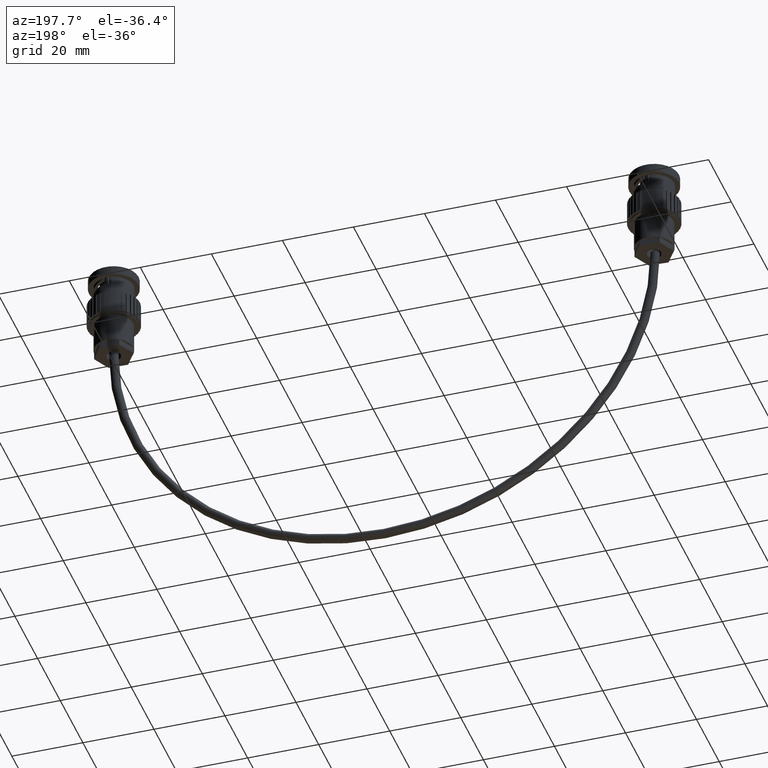
[diagram: clean part render]
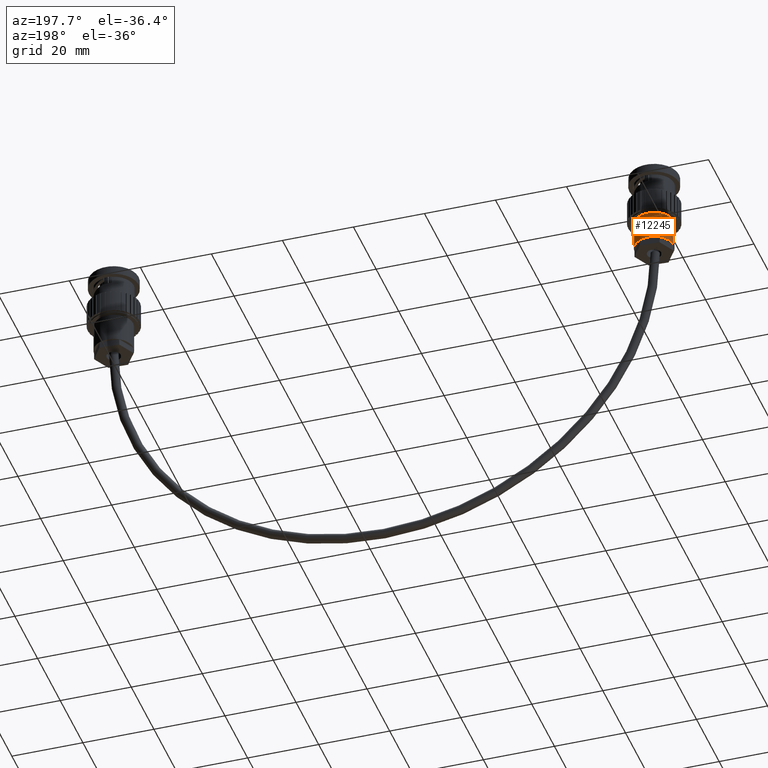
[diagram: same view with one face highlighted and labeled with its STEP entity id]
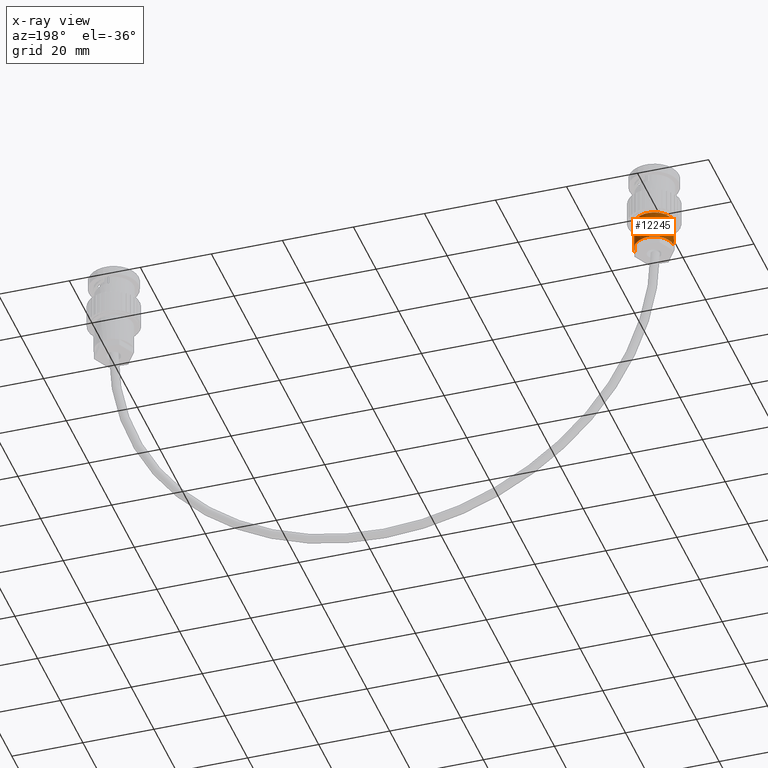
[diagram: x-ray of the same camera — body ghosted, the highlighted face saturated]
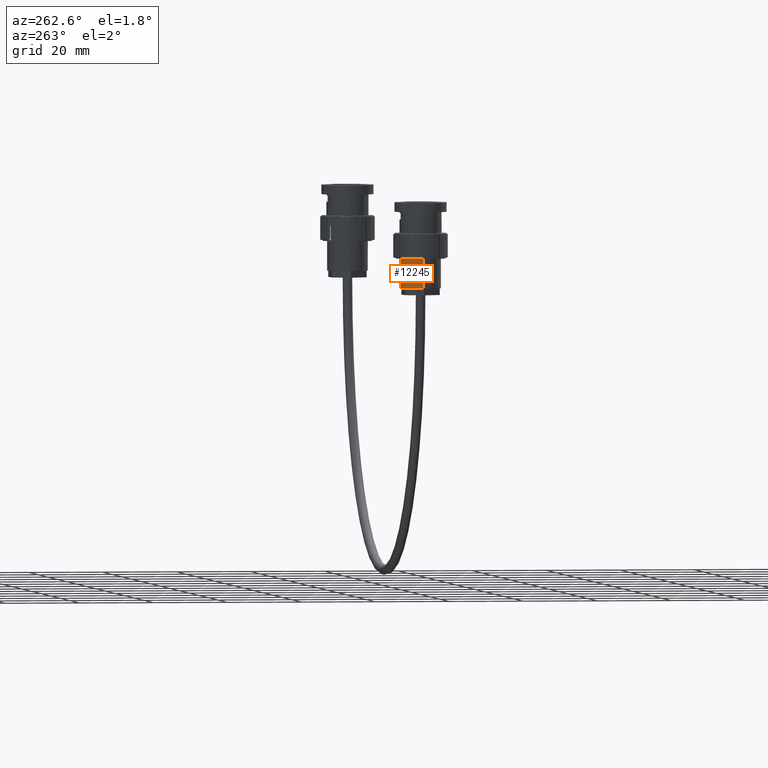
[diagram: same view with one face highlighted and labeled with its STEP entity id]
A machine part, auxiliary view. The second image highlights one B-rep face of the part: STEP entity #12245.
The next image is the same camera in x-ray: the body ghosted, the highlighted face saturated — about 0% of this face is hidden behind the body in this view.
A second angle (auxiliary view) of the same face is appended — the face is thin or edge-on in the first view.
In plain terms, the highlighted cylindrical surface (edge-blend (fillet) strip) has radius 5.461 mm, axis along (-0, -0, 1).
Its self-contained STEP definition (entity closure, byte-faithful):
#2246 = AXIS2_PLACEMENT_3D ( 'NONE', #11805, #11803, #11798 ) ;
#3229 = EDGE_CURVE ( 'NONE', #10389, #10411, #15556, .T. ) ;
#3230 = EDGE_CURVE ( 'NONE', #10411, #10419, #15557, .T. ) ;
#3231 = EDGE_CURVE ( 'NONE', #10410, #10419, #15560, .T. ) ;
#3232 = EDGE_CURVE ( 'NONE', #17506, #10410, #15559, .T. ) ;
#3233 = EDGE_CURVE ( 'NONE', #17506, #10371, #15562, .T. ) ;
#3234 = EDGE_CURVE ( 'NONE', #10371, #10366, #15565, .T. ) ;
#3235 = EDGE_CURVE ( 'NONE', #10366, #10389, #15566, .T. ) ;
#5727 = CARTESIAN_POINT ( 'NONE',  ( 0.2150000000000000000, 0.0000000000000000000, -0.9079046006083559800 ) ) ;
#6559 = CARTESIAN_POINT ( 'NONE',  ( 0.09748554388854337200, 0.1916287262723281300, -0.9079046006083559800 ) ) ;
#6564 = CARTESIAN_POINT ( 'NONE',  ( 0.2146981169909623600, 0.01138940562694254100, -0.9079046006083559800 ) ) ;
#6582 = CARTESIAN_POINT ( 'NONE',  ( -0.1172125731024187500, 0.1802393206453856400, -0.9079046006083559800 ) ) ;
#6603 = CARTESIAN_POINT ( 'NONE',  ( 0.2150000000000000000, 0.0000000000000000000, -0.5929046006083559300 ) ) ;
#6604 = CARTESIAN_POINT ( 'NONE',  ( -0.2150000000000000000, 2.632990618166809100E-017, -0.9079046006083559800 ) ) ;
#6612 = CARTESIAN_POINT ( 'NONE',  ( -0.2150000000000000000, 2.632990618166809100E-017, -0.5929046006083559300 ) ) ;
#8156 = EDGE_LOOP ( 'NONE', ( #10560, #10561, #10562, #10563, #10564, #10565, #10566 ) ) ;
#8876 = FACE_OUTER_BOUND ( 'NONE', #8156, .T. ) ;
#8880 = CYLINDRICAL_SURFACE ( 'NONE', #2246, 0.2150000000000000000 ) ;
#10366 = VERTEX_POINT ( 'NONE', #6559 ) ;
#10371 = VERTEX_POINT ( 'NONE', #6564 ) ;
#10389 = VERTEX_POINT ( 'NONE', #6582 ) ;
#10410 = VERTEX_POINT ( 'NONE', #6603 ) ;
#10411 = VERTEX_POINT ( 'NONE', #6604 ) ;
#10419 = VERTEX_POINT ( 'NONE', #6612 ) ;
#10560 = ORIENTED_EDGE ( 'NONE', *, *, #3229, .T. ) ;
#10561 = ORIENTED_EDGE ( 'NONE', *, *, #3230, .T. ) ;
#10562 = ORIENTED_EDGE ( 'NONE', *, *, #3231, .F. ) ;
#10563 = ORIENTED_EDGE ( 'NONE', *, *, #3232, .F. ) ;
#10564 = ORIENTED_EDGE ( 'NONE', *, *, #3233, .T. ) ;
#10565 = ORIENTED_EDGE ( 'NONE', *, *, #3234, .T. ) ;
#10566 = ORIENTED_EDGE ( 'NONE', *, *, #3235, .T. ) ;
#11798 = DIRECTION ( 'NONE',  ( 1.000000000000000000, 0.0000000000000000000, 0.0000000000000000000 ) ) ;
#11803 = DIRECTION ( 'NONE',  ( -0.0000000000000000000, -0.0000000000000000000, 1.000000000000000000 ) ) ;
#11805 = CARTESIAN_POINT ( 'NONE',  ( 0.0000000000000000000, 0.0000000000000000000, 0.0000000000000000000 ) ) ;
#12245 = ADVANCED_FACE ( 'NONE', ( #8876 ), #8880, .T. ) ;
#15556 = CIRCLE ( 'NONE', #17639, 0.2150000000000000000 ) ;
#15557 = LINE ( 'NONE', #18092, #15561 ) ;
#15559 = LINE ( 'NONE', #18096, #15564 ) ;
#15560 = CIRCLE ( 'NONE', #17640, 0.2150000000000000000 ) ;
#15561 = VECTOR ( 'NONE', #18090, 39.37007874015748100 ) ;
#15562 = CIRCLE ( 'NONE', #17641, 0.2150000000000000000 ) ;
#15564 = VECTOR ( 'NONE', #18091, 39.37007874015748100 ) ;
#15565 = CIRCLE ( 'NONE', #17642, 0.2150000000000000000 ) ;
#15566 = CIRCLE ( 'NONE', #17643, 0.2150000000000000000 ) ;
#17506 = VERTEX_POINT ( 'NONE', #5727 ) ;
#17639 = AXIS2_PLACEMENT_3D ( 'NONE', #18093, #18094, #18095 ) ;
#17640 = AXIS2_PLACEMENT_3D ( 'NONE', #18097, #18098, #18099 ) ;
#17641 = AXIS2_PLACEMENT_3D ( 'NONE', #18100, #18101, #18102 ) ;
#17642 = AXIS2_PLACEMENT_3D ( 'NONE', #18104, #18105, #18106 ) ;
#17643 = AXIS2_PLACEMENT_3D ( 'NONE', #18108, #18109, #18110 ) ;
#18090 = DIRECTION ( 'NONE',  ( -0.0000000000000000000, -0.0000000000000000000, 1.000000000000000000 ) ) ;
#18091 = DIRECTION ( 'NONE',  ( -0.0000000000000000000, -0.0000000000000000000, 1.000000000000000000 ) ) ;
#18092 = CARTESIAN_POINT ( 'NONE',  ( -0.2150000000000000000, 2.632990618166809100E-017, 0.0000000000000000000 ) ) ;
#18093 = CARTESIAN_POINT ( 'NONE',  ( 0.0000000000000000000, 0.0000000000000000000, -0.9079046006083559800 ) ) ;
#18094 = DIRECTION ( 'NONE',  ( -0.0000000000000000000, -0.0000000000000000000, 1.000000000000000000 ) ) ;
#18095 = DIRECTION ( 'NONE',  ( 1.000000000000000000, 0.0000000000000000000, 0.0000000000000000000 ) ) ;
#18096 = CARTESIAN_POINT ( 'NONE',  ( 0.2150000000000000000, 0.0000000000000000000, 0.0000000000000000000 ) ) ;
#18097 = CARTESIAN_POINT ( 'NONE',  ( 0.0000000000000000000, 0.0000000000000000000, -0.5929046006083559300 ) ) ;
#18098 = DIRECTION ( 'NONE',  ( -0.0000000000000000000, -0.0000000000000000000, 1.000000000000000000 ) ) ;
#18099 = DIRECTION ( 'NONE',  ( 1.000000000000000000, 0.0000000000000000000, 0.0000000000000000000 ) ) ;
#18100 = CARTESIAN_POINT ( 'NONE',  ( 0.0000000000000000000, 0.0000000000000000000, -0.9079046006083559800 ) ) ;
#18101 = DIRECTION ( 'NONE',  ( -0.0000000000000000000, -0.0000000000000000000, 1.000000000000000000 ) ) ;
#18102 = DIRECTION ( 'NONE',  ( 1.000000000000000000, 0.0000000000000000000, 0.0000000000000000000 ) ) ;
#18104 = CARTESIAN_POINT ( 'NONE',  ( 0.0000000000000000000, 0.0000000000000000000, -0.9079046006083559800 ) ) ;
#18105 = DIRECTION ( 'NONE',  ( -0.0000000000000000000, -0.0000000000000000000, 1.000000000000000000 ) ) ;
#18106 = DIRECTION ( 'NONE',  ( 1.000000000000000000, 0.0000000000000000000, 0.0000000000000000000 ) ) ;
#18108 = CARTESIAN_POINT ( 'NONE',  ( 0.0000000000000000000, 0.0000000000000000000, -0.9079046006083559800 ) ) ;
#18109 = DIRECTION ( 'NONE',  ( -0.0000000000000000000, -0.0000000000000000000, 1.000000000000000000 ) ) ;
#18110 = DIRECTION ( 'NONE',  ( 1.000000000000000000, 0.0000000000000000000, 0.0000000000000000000 ) ) ;